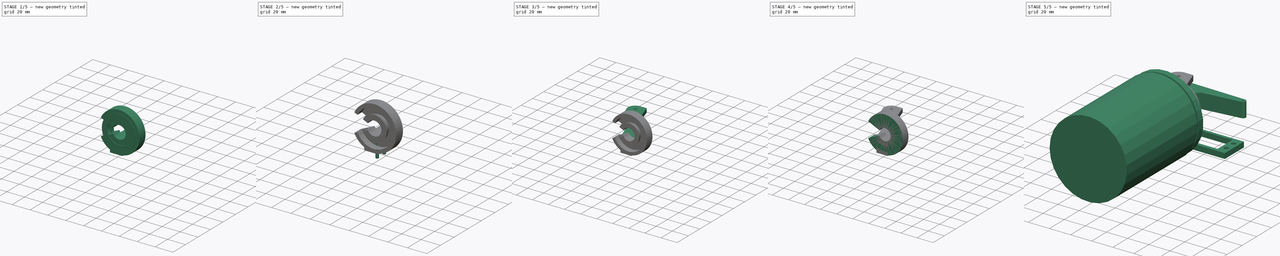
[diagram: build sequence overview — one tinted view per stage of 5, left to right]
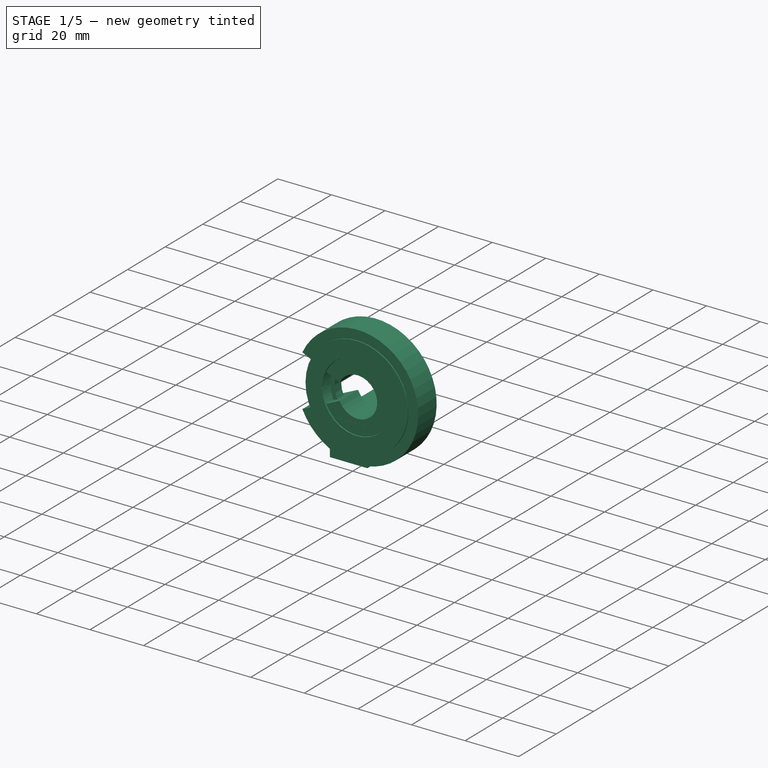
[diagram: stage 1 of 5 — iso view after this stage's code; geometry added in this stage tinted green]
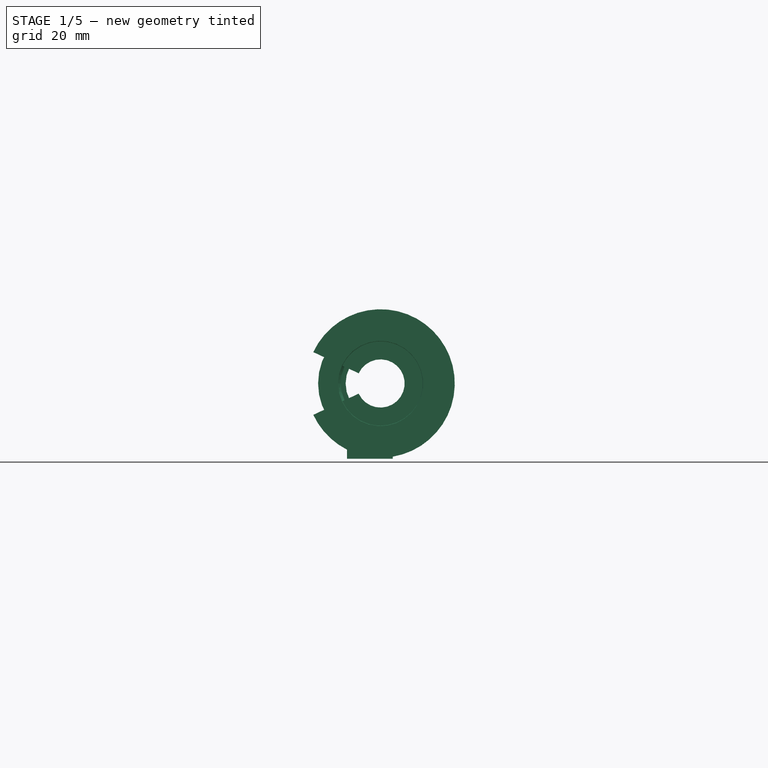
[diagram: stage 1 of 5 — front view after this stage's code; geometry added in this stage tinted green]
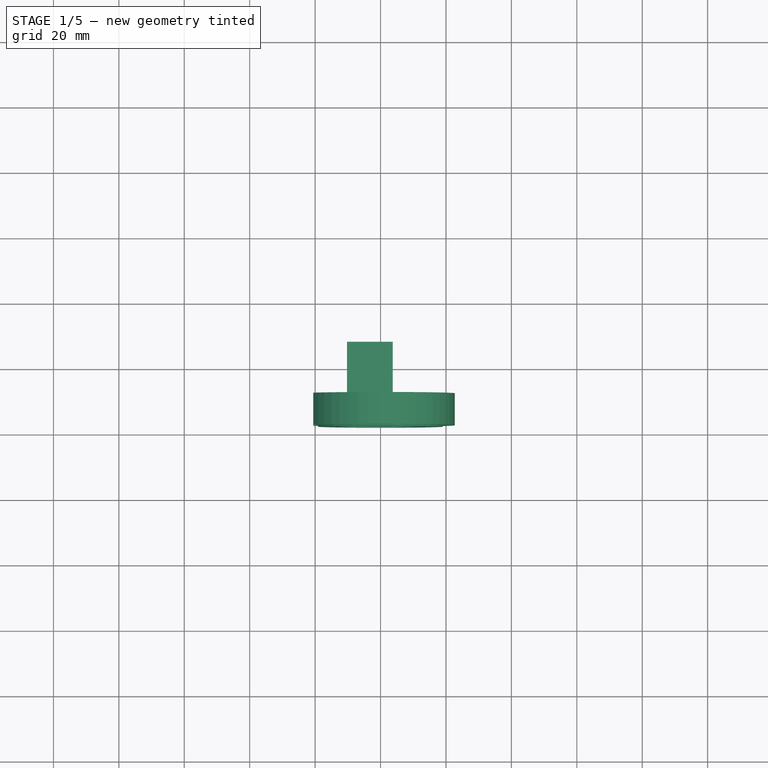
[diagram: stage 1 of 5 — top view after this stage's code; geometry added in this stage tinted green]
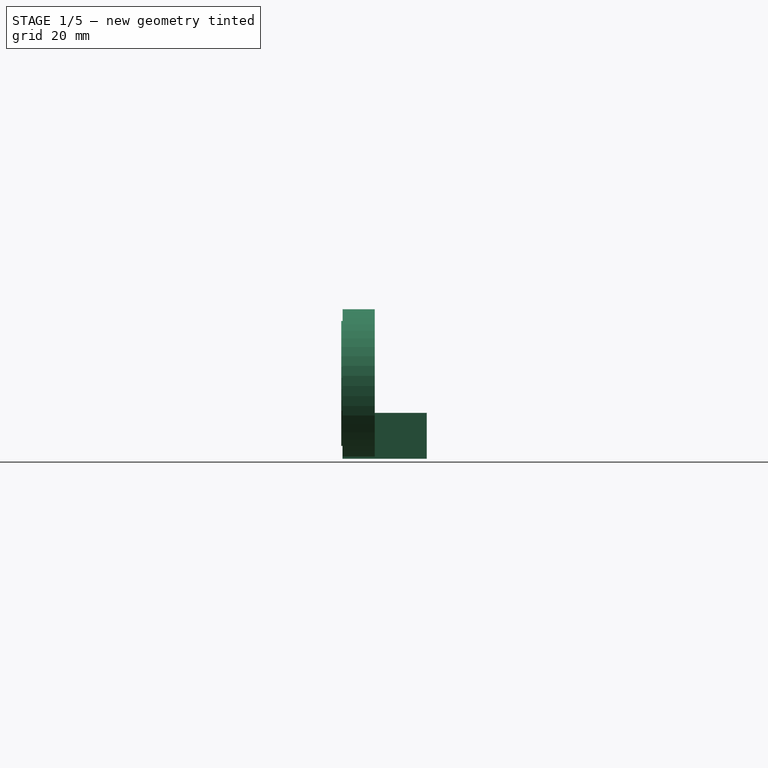
[diagram: stage 1 of 5 — right view after this stage's code; geometry added in this stage tinted green]
FCSTD DOCUMENT
Label: backup
objects: Sketcher::SketchObject×6, PartDesign::Pad×4, PartDesign::Revolution×4, Part::MultiFuse×3, Part::Cylinder×2, Part::Fuse×2, Part::Cut×2, Part::Box×1
note: 28 computed .brp shape members not serialized (recipe doc carries the construction recipe); baked Part::Feature solids carry a one-line shape summary decoded from their .brp

FEATURE [Part::Box] Box
  Height = 14
  Length = 14
  Placement = pos=(-10.25,-77.5,-23) rot=(0,0,1;0rad)
  Width = 25.75
FEATURE [Sketcher::SketchObject] Sketch007  label="cutout"
  sketch-geometry (6):
    g0: LineSegment StartX=-10.6785 StartY=-74.4568 StartZ=0 EndX=-12.1785 EndY=-74.4568 EndZ=0
    g1: LineSegment StartX=-12.1785 StartY=-74.4568 StartZ=0 EndX=-13 EndY=-77.8591 EndZ=0
    g2: LineSegment StartX=-19.0996 StartY=-77.8591 StartZ=0 EndX=-19.0996 EndY=-70.9592 EndZ=0
    g3: LineSegment StartX=-19.0996 StartY=-70.9592 StartZ=0 EndX=-10.6785 EndY=-70.9592 EndZ=0
    g4: LineSegment StartX=-10.6785 StartY=-70.9592 StartZ=0 EndX=-10.6785 EndY=-74.4568 EndZ=0
    g5: LineSegment StartX=-19.0996 StartY=-77.8591 StartZ=0 EndX=-13 EndY=-77.8591 EndZ=0
  constraints (14):
    c: Coincident(g0,g1)
    c: Coincident(g2,g3)
    c: Coincident(g3,g4)
    c: Coincident(g0,g4)
    c: DistanceX(g1) = -13
    c: Distance(g0) = 1.5
    c: Distance(g1) = 3.5
    c: Horizontal(g0)
    c: Horizontal(g3)
    c: Coincident(g5,g2)
    c: Horizontal(g5)
    c: Coincident(g5,g1)
    c: Vertical(g4)
    c: Vertical(g2)
FEATURE [PartDesign::Revolution] Revolution001  label="CutRevolve"
  Angle = 360
  Axis = (0,1,0)
  Base = (0,0,0)
  Sketch = -> Sketch007
FEATURE [PartDesign::Revolution] Revolution002  label="ClipBase"
  Angle = 310
  Axis = (0,1,0)
  Base = (0,0,0)
  Placement = pos=(0,0,0) rot=(0,1,0;0.436332rad)
  Sketch = -> Sketch002
FEATURE [Part::Fuse] Fusion001
  Base = -> Revolution002
  Tool = -> Box
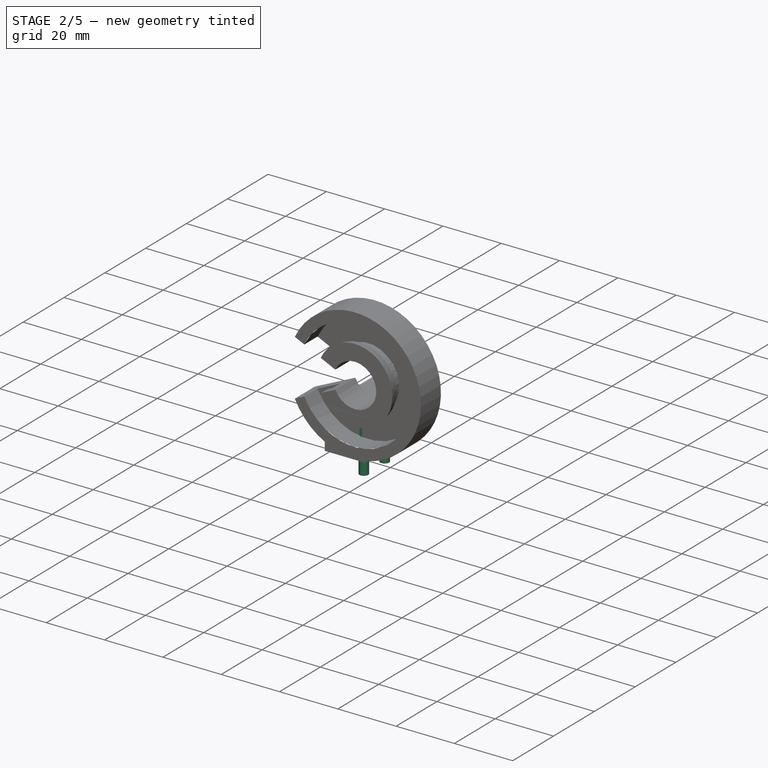
[diagram: stage 2 of 5 — iso view after this stage's code; geometry added in this stage tinted green]
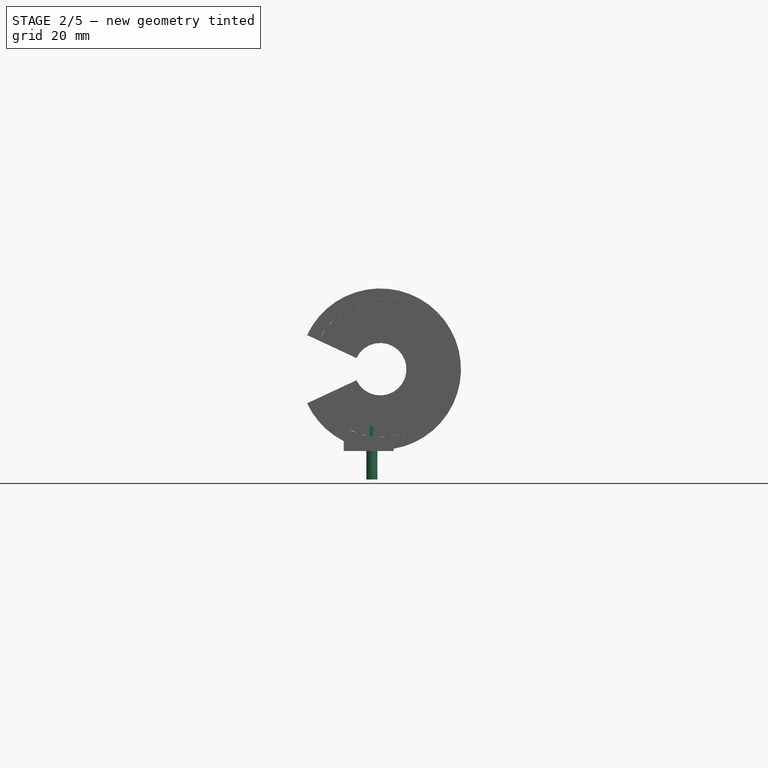
[diagram: stage 2 of 5 — front view after this stage's code; geometry added in this stage tinted green]
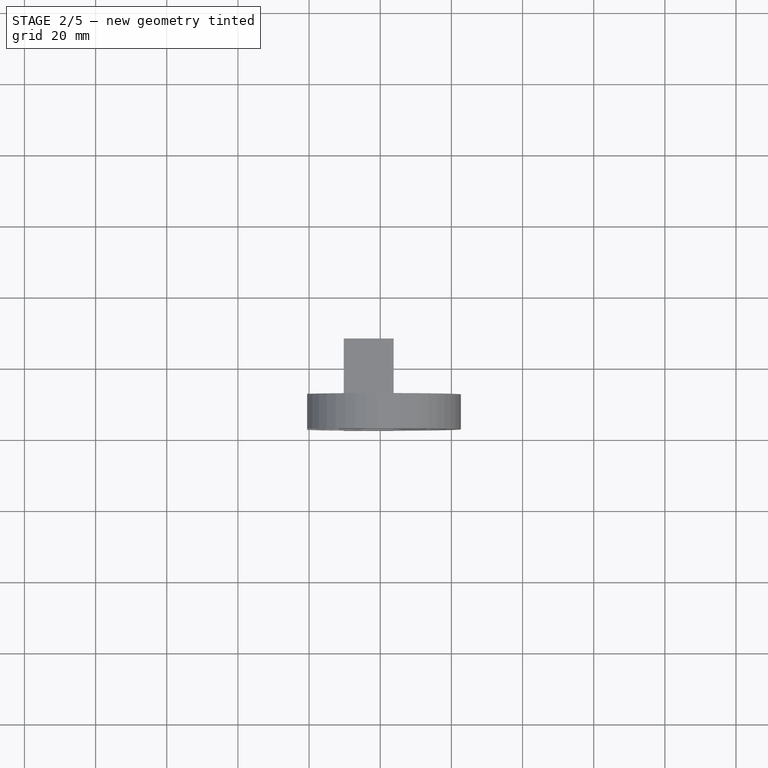
[diagram: stage 2 of 5 — top view after this stage's code; geometry added in this stage tinted green]
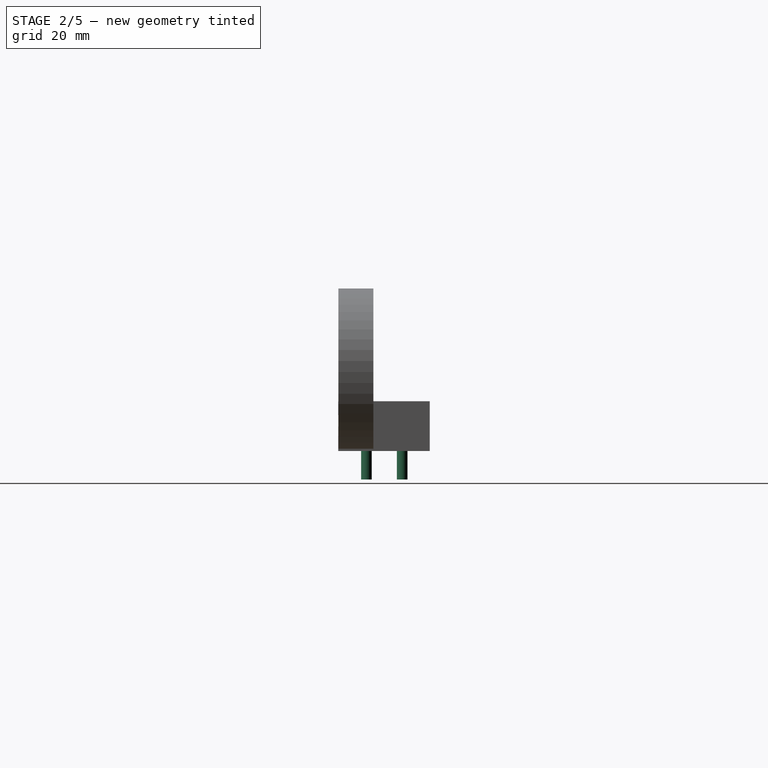
[diagram: stage 2 of 5 — right view after this stage's code; geometry added in this stage tinted green]
FEATURE [Part::Cylinder] Cylinder
  Angle = 360
  Height = 15
  Placement = pos=(-2.3,-59.5,-31) rot=(0,0,1;0rad)
  Radius = 1.5
FEATURE [Part::Cylinder] Cylinder001
  Angle = 360
  Height = 15
  Placement = pos=(-2.4,-69.55,-31) rot=(0,0,1;0rad)
  Radius = 1.5
FEATURE [Part::Cut] Cut
  Base = -> Fusion001
  Tool = -> Revolution001
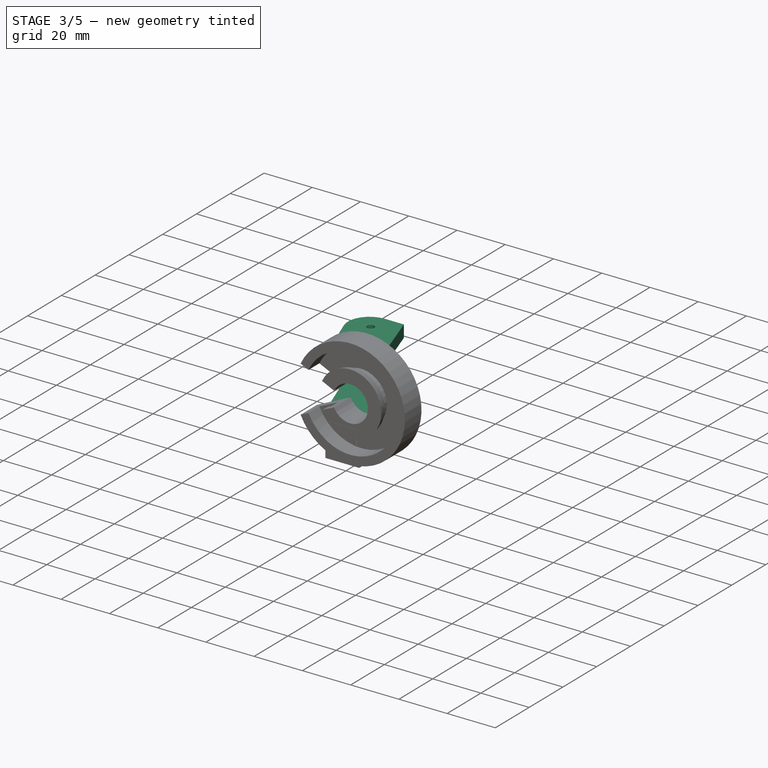
[diagram: stage 3 of 5 — iso view after this stage's code; geometry added in this stage tinted green]
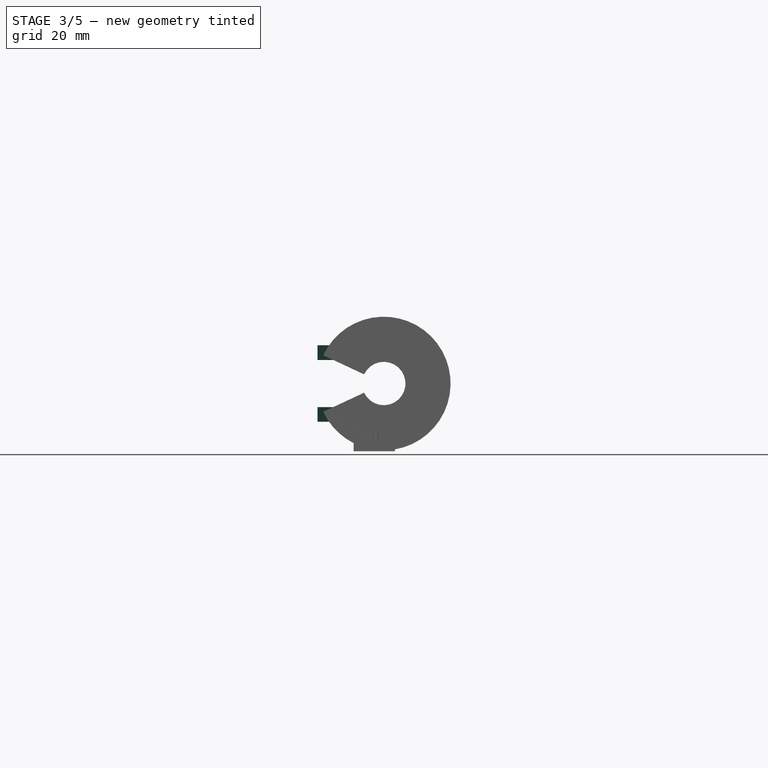
[diagram: stage 3 of 5 — front view after this stage's code; geometry added in this stage tinted green]
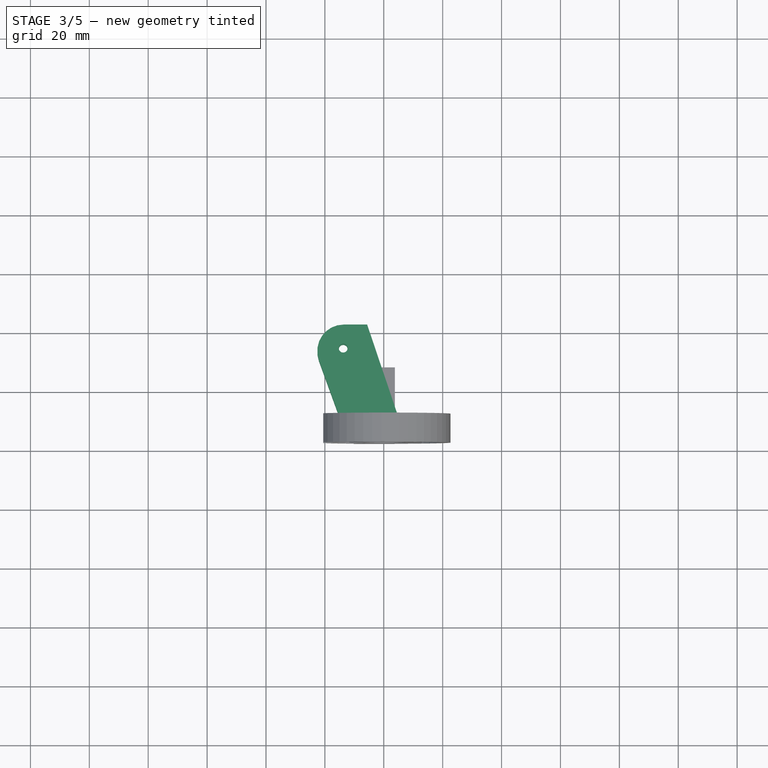
[diagram: stage 3 of 5 — top view after this stage's code; geometry added in this stage tinted green]
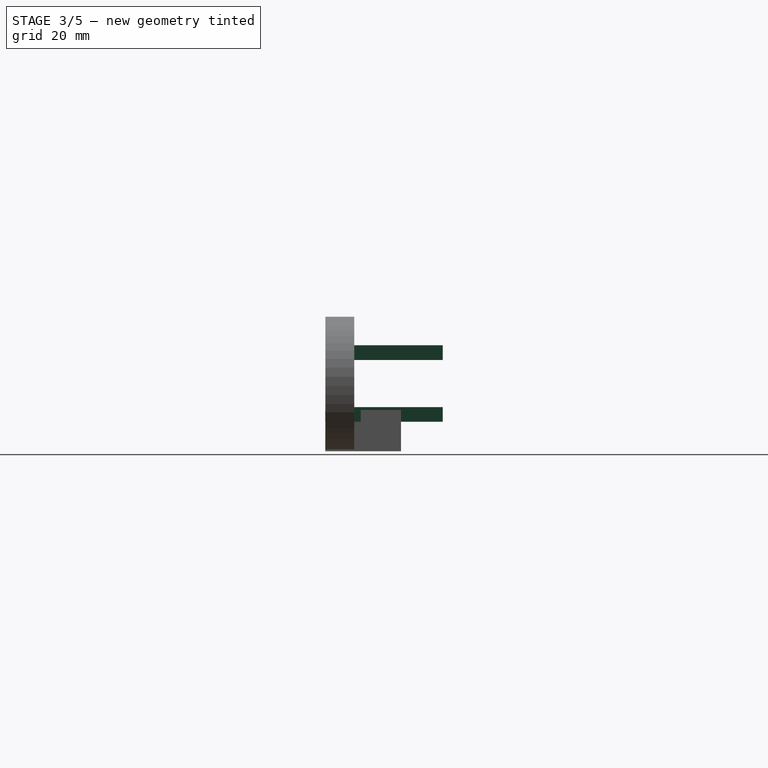
[diagram: stage 3 of 5 — right view after this stage's code; geometry added in this stage tinted green]
FEATURE [Sketcher::SketchObject] Sketch005
  sketch-geometry (7):
    g0: ArcOfCircle CenterX=0.120536 CenterY=-43.7845 CenterZ=0 NormalX=0 NormalY=0 NormalZ=1 Radius=11.5561 StartAngle=3.71777 EndAngle=5.7098
    g1: Circle CenterX=-13.7325 CenterY=-45.5594 CenterZ=0 NormalX=0 NormalY=0 NormalZ=1 Radius=1.5
    g2: Circle CenterX=45.3624 CenterY=-43.1808 CenterZ=0 NormalX=0 NormalY=0 NormalZ=1 Radius=1
    g3: LineSegment StartX=-13.6051 StartY=-39.4152 StartZ=0 EndX=45.4151 EndY=-40.6383 EndZ=0
    g4: LineSegment StartX=45.6687 StartY=-45.7054 StartZ=0 EndX=9.82841 EndY=-50.0535 EndZ=0
    g5: ArcOfCircle CenterX=-13.7325 CenterY=-45.5594 CenterZ=0 NormalX=0 NormalY=0 NormalZ=1 Radius=6.14557 StartAngle=1.55008 EndAngle=5.45653
    g6: ArcOfCircle CenterX=45.3624 CenterY=-43.1808 CenterZ=0 NormalX=0 NormalY=0 NormalZ=1 Radius=2.54307 StartAngle=4.83312 EndAngle=7.83326
  constraints (12):
    c: Coincident(g4,g0)
    c: Radius(g2) = 1
    c: Radius(g1) = 1.5
    c: Coincident(g3,g5)
    c: Coincident(g5,g0)
    c: Coincident(g4,g6)
    c: Tangent(g4,g6)
    c: Coincident(g6,g2)
    c: Coincident(g6,g3)
    c: Tangent(g3,g6)
    c: Coincident(g5,g1)
    c: Tangent(g5,g3)
FEATURE [Sketcher::SketchObject] Sketch006
  sketch-geometry (6):
    g0: Circle CenterX=-13.7888 CenterY=-45.579 CenterZ=0 NormalX=0 NormalY=0 NormalZ=1 Radius=1.5
    g1: ArcOfCircle CenterX=-13.6227 CenterY=-46.5271 CenterZ=0 NormalX=0 NormalY=0 NormalZ=1 Radius=8.95293 StartAngle=1.5708 EndAngle=3.49058
    g2: LineSegment StartX=-22.0359 StartY=-49.5886 StartZ=0 EndX=-15.4242 EndY=-67.7585 EndZ=0
    g3: LineSegment StartX=-15.4242 StartY=-67.7585 StartZ=0 EndX=4.54183 EndY=-67.7585 EndZ=0
    g4: LineSegment StartX=4.54183 StartY=-67.7585 StartZ=0 EndX=-5.6479 EndY=-37.5742 EndZ=0
    g5: LineSegment StartX=-5.6479 StartY=-37.5742 StartZ=0 EndX=-13.6227 EndY=-37.5742 EndZ=0
  constraints (10):
    c: Coincident(g2,g3)
    c: Horizontal(g3)
    c: Coincident(g4,g5)
    c: Coincident(g5,g1)
    c: Horizontal(g5)
    c: Tangent(g2,g1)
    c: Coincident(g1,g2)
    c: Tangent(g5,g1)
    c: Radius(g0) = 1.5
    c: Coincident(g4,g3)
FEATURE [PartDesign::Pad] Pad004  label="Leg1"
  Length = 5
  MirroredExtent = false
  Placement = pos=(0,0,8) rot=(0,0,1;0rad)
  Sketch = -> Sketch006
FEATURE [PartDesign::Pad] Pad005  label="Leg2"
  Length = 5
  MirroredExtent = false
  Placement = pos=(0,0,-13) rot=(0,0,1;0rad)
  Sketch = -> Sketch006
FEATURE [Part::MultiFuse] Fusion002
  Shapes = -> [Cylinder001,Cylinder]
FEATURE [Part::Cut] Cut001
  Base = -> Cut
  Tool = -> Fusion002
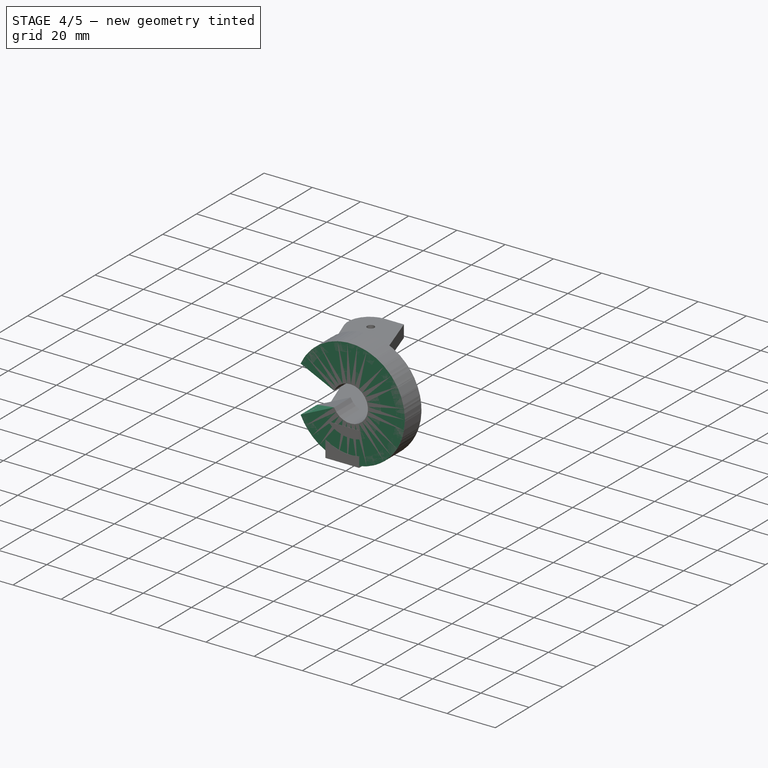
[diagram: stage 4 of 5 — iso view after this stage's code; geometry added in this stage tinted green]
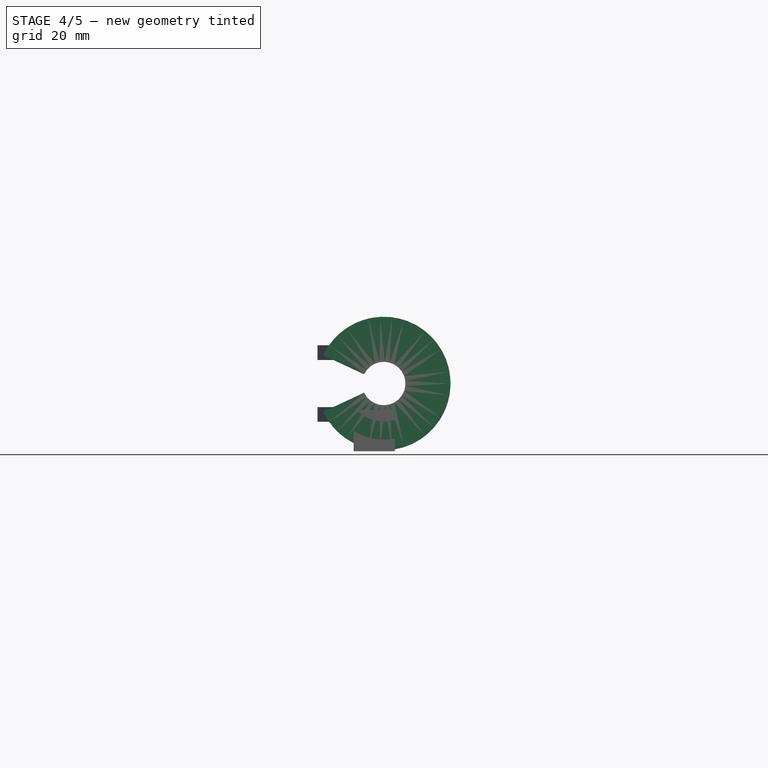
[diagram: stage 4 of 5 — front view after this stage's code; geometry added in this stage tinted green]
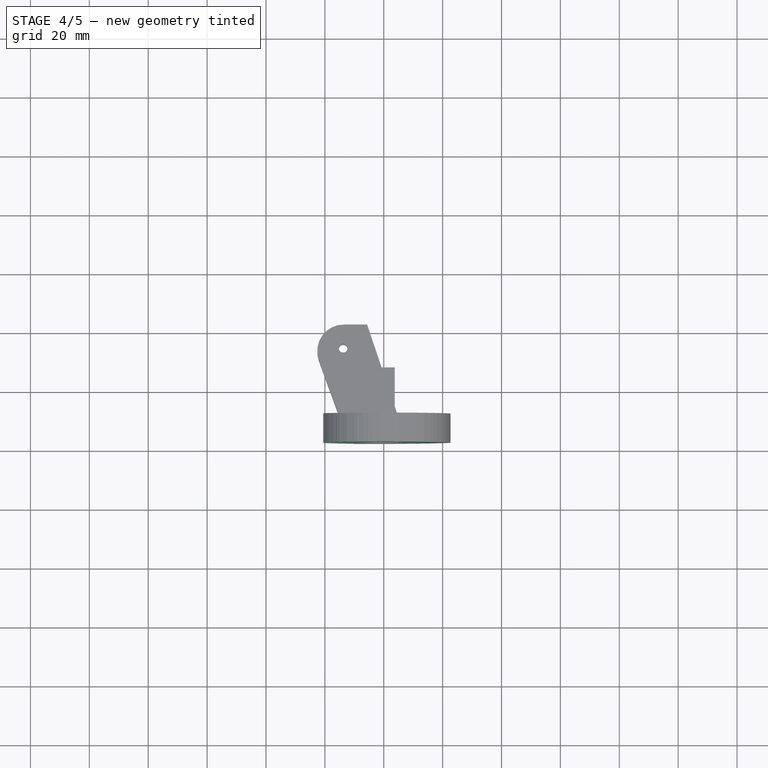
[diagram: stage 4 of 5 — top view after this stage's code; geometry added in this stage tinted green]
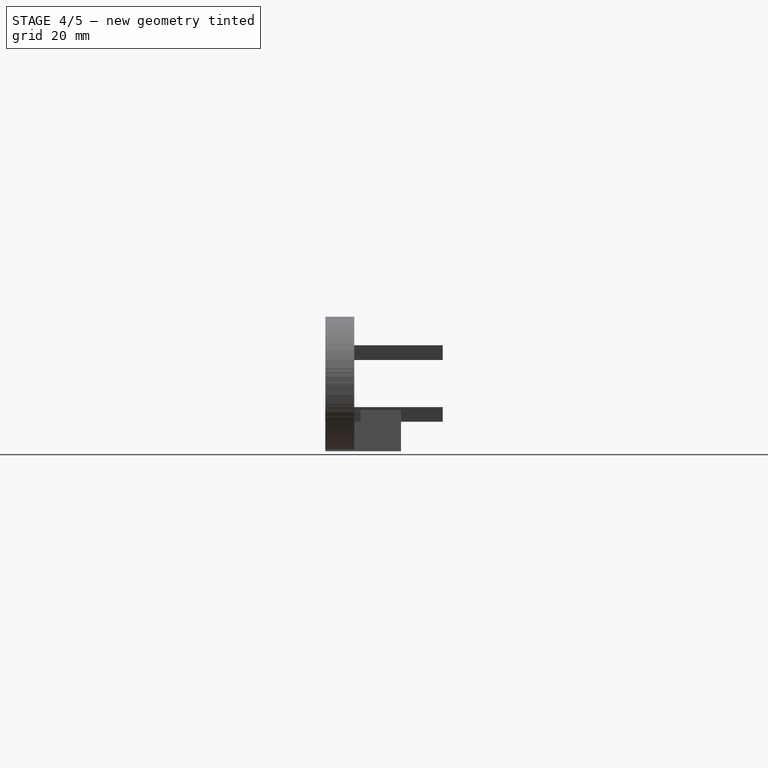
[diagram: stage 4 of 5 — right view after this stage's code; geometry added in this stage tinted green]
FEATURE [Part::Fuse] Fusion
  Base = -> Pad004
  Tool = -> Pad005
FEATURE [PartDesign::Revolution] Revolution003  label="ClipBase001"
  Angle = 310
  Axis = (0,1,0)
  Base = (0,0,0)
  Placement = pos=(0,0,0) rot=(0,1,0;0.436332rad)
  Sketch = -> Sketch002
FEATURE [Part::MultiFuse] Fusion004
  Shapes = -> [Fusion,Cut001]
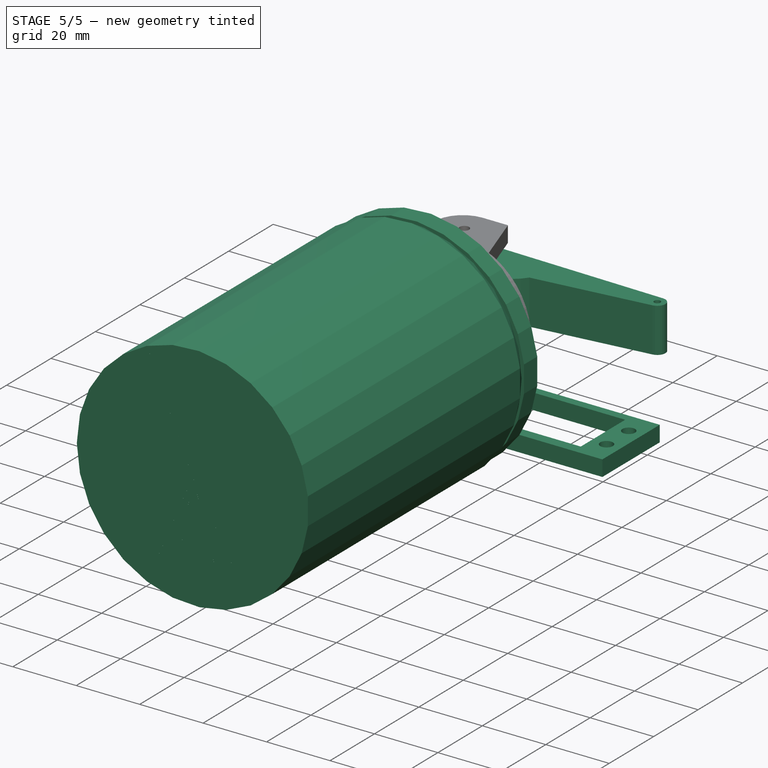
[diagram: stage 5 of 5 — iso view after this stage's code; geometry added in this stage tinted green]
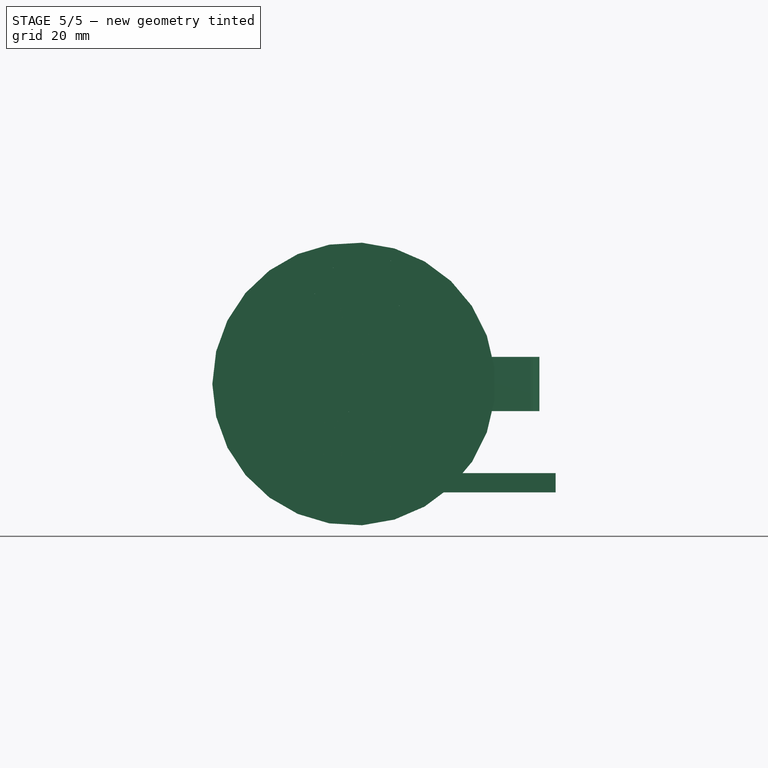
[diagram: stage 5 of 5 — front view after this stage's code; geometry added in this stage tinted green]
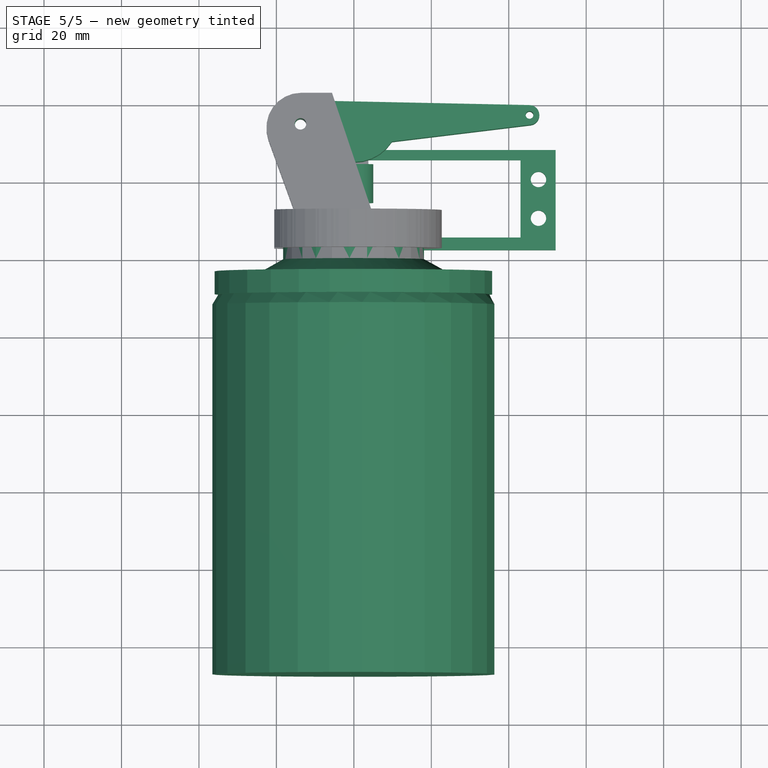
[diagram: stage 5 of 5 — top view after this stage's code; geometry added in this stage tinted green]
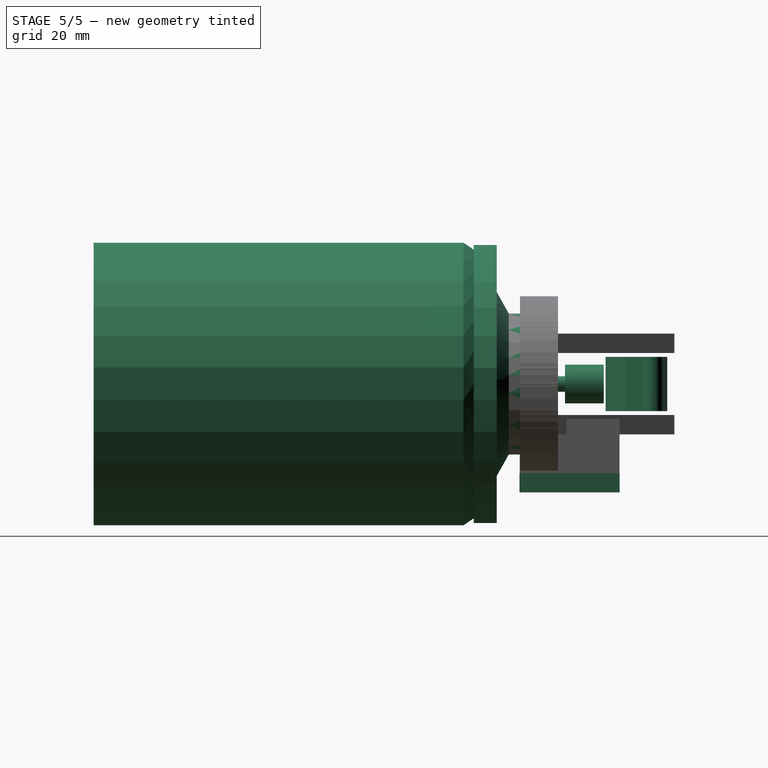
[diagram: stage 5 of 5 — right view after this stage's code; geometry added in this stage tinted green]
FEATURE [Sketcher::SketchObject] Sketch
  sketch-geometry (20):
    g0: LineSegment StartX=0.00389886 StartY=-55.811 StartZ=0 EndX=-4.9961 EndY=-55.811 EndZ=0
    g1: LineSegment StartX=-4.9961 StartY=-55.811 StartZ=0 EndX=-4.9961 EndY=-65.8236 EndZ=0
    g2: LineSegment StartX=-4.9961 StartY=-65.8236 StartZ=0 EndX=-1.9961 EndY=-65.8236 EndZ=0
    g3: LineSegment StartX=-1.9961 StartY=-65.8236 StartZ=0 EndX=-1.9961 EndY=-77.8236 EndZ=0
    g4: LineSegment StartX=-1.9961 StartY=-77.8236 StartZ=0 EndX=-15.9961 EndY=-77.8236 EndZ=0
    g5: LineSegment StartX=-15.9961 StartY=-77.8236 StartZ=0 EndX=-15.9961 EndY=-74.7236 EndZ=0
    g6: LineSegment StartX=-15.9961 StartY=-74.7236 StartZ=0 EndX=-13.9961 EndY=-74.7236 EndZ=0
    g7: LineSegment StartX=-13.9961 StartY=-74.7236 StartZ=0 EndX=-13.9961 EndY=-71.6236 EndZ=0
    g8: LineSegment StartX=-13.9961 StartY=-71.6236 StartZ=0 EndX=-18.2461 EndY=-71.6236 EndZ=0
    g9: LineSegment StartX=-18.2461 StartY=-71.6236 StartZ=0 EndX=-18.2461 EndY=-80.3468 EndZ=0
    g10: LineSegment StartX=-18.2461 StartY=-80.3468 StartZ=0 EndX=-32.2008 EndY=-88.1907 EndZ=0
    g11: LineSegment StartX=-32.2008 StartY=-88.1907 StartZ=0 EndX=-34.2008 EndY=-88.1907 EndZ=0
    g12: LineSegment StartX=-34.2008 StartY=-88.1907 StartZ=0 EndX=-34.2008 EndY=-83.4407 EndZ=0
    g13: LineSegment StartX=-34.2008 StartY=-83.4407 StartZ=0 EndX=-35.9508 EndY=-83.4407 EndZ=0
    g14: LineSegment StartX=-35.9508 StartY=-83.4407 StartZ=0 EndX=-35.9508 EndY=-89.3956 EndZ=0
    g15: LineSegment StartX=-35.9508 StartY=-89.3956 StartZ=0 EndX=-34.9508 EndY=-89.3956 EndZ=0
    g16: LineSegment StartX=-34.9508 StartY=-89.3956 StartZ=0 EndX=-36.541 EndY=-92.0268 EndZ=0
    g17: LineSegment StartX=-36.541 StartY=-92.0268 StartZ=0 EndX=-36.541 EndY=-187.541 EndZ=0
    g18: LineSegment StartX=-36.541 StartY=-187.541 StartZ=0 EndX=0.00389886 EndY=-187.541 EndZ=0
    g19: LineSegment StartX=0.00389886 StartY=-187.541 StartZ=0 EndX=0.00389886 EndY=-55.811 EndZ=0
  constraints (54):
    c: Coincident(g0,g1)
    c: Vertical(g1)
    c: Coincident(g1,g2)
    c: Horizontal(g2)
    c: Coincident(g2,g3)
    c: Vertical(g3)
    c: Coincident(g3,g4)
    c: Horizontal(g4)
    c: Coincident(g4,g5)
    c: Coincident(g5,g6)
    c: Horizontal(g6)
    c: Coincident(g6,g7)
    c: Vertical(g7)
    c: Coincident(g7,g8)
    c: Horizontal(g8)
    c: Coincident(g8,g9)
    c: Vertical(g9)
    c: Coincident(g9,g10)
    c: Coincident(g10,g11)
    c: Coincident(g11,g12)
    c: Coincident(g12,g13)
    c: Coincident(g13,g14)
    c: Vertical(g14)
    c: Coincident(g14,g15)
    c: Coincident(g15,g16)
    c: Coincident(g16,g17)
    c: Vertical(g17)
    c: Coincident(g17,g18)
    c: Horizontal(g18)
    c: Coincident(g18,g19)
    c: Coincident(g19,g0)
    c: Vertical(g19)
    c: Horizontal(g0)
    c: Vertical(g12)
    c: Horizontal(g11)
    c: Horizontal(g15)
    c: Horizontal(g13)
    c: Distance(g2) = 3
    c: Distance(g1) = 10.0126
    c: Distance(g0) = 5
    c: Vertical(g5)
    c: Distance(g3) = 12
    c: Distance(g8) = 4.25
    c: Distance(g7) = 3.1
    c: Distance(g5) = 3.1
    c: Distance(g9) = 8.72314
    c: Distance(g6) = 2
    c: Distance(g11) = 2
    c: Distance(g13) = 1.75
    c: Distance(g12) = 4.75
    c: Distance(g18) = 36.5449
    c: Distance(g4) = 14
    c: Distance(g14) = 5.95489
    c: Distance(g15) = 1
FEATURE [Sketcher::SketchObject] Sketch002
  sketch-geometry (4):
    g0: LineSegment StartX=-7.37255 StartY=-77.4445 StartZ=0 EndX=-7.37255 EndY=-67.6266 EndZ=0
    g1: LineSegment StartX=-7.37255 StartY=-67.6266 StartZ=0 EndX=-22.6885 EndY=-67.6266 EndZ=0
    g2: LineSegment StartX=-22.6885 StartY=-67.6266 StartZ=0 EndX=-22.6885 EndY=-77.4445 EndZ=0
    g3: LineSegment StartX=-22.6885 StartY=-77.4445 StartZ=0 EndX=-7.37255 EndY=-77.4445 EndZ=0
  constraints (11):
    c: Coincident(g0,g1)
    c: Coincident(g1,g2)
    c: Coincident(g2,g3)
    c: Horizontal(g3)
    c: Vertical(g0)
    c: Vertical(g2)
    c: Horizontal(g1)
    c: DistanceX(g0) = -7.37255
    c: DistanceY(g0) = -77.4445
    c: Distance(g1) = 15.316
    c: Coincident(g3,g0)
FEATURE [Sketcher::SketchObject] Sketch004
  sketch-geometry (14):
    g0: Circle CenterX=10.673 CenterY=-80.6744 CenterZ=0 NormalX=0 NormalY=0 NormalZ=1 Radius=2
    g1: Circle CenterX=20.673 CenterY=-80.6744 CenterZ=0 NormalX=0 NormalY=0 NormalZ=1 Radius=2
    g2: Circle CenterX=10.673 CenterY=-130.674 CenterZ=0 NormalX=0 NormalY=0 NormalZ=1 Radius=2
    g3: Circle CenterX=20.673 CenterY=-130.674 CenterZ=0 NormalX=0 NormalY=0 NormalZ=1 Radius=2
    g4: LineSegment StartX=2.44713 StartY=-72.7598 StartZ=0 EndX=28.2757 EndY=-72.7598 EndZ=0
    g5: LineSegment StartX=28.2757 StartY=-72.7598 StartZ=0 EndX=28.2757 EndY=-135.115 EndZ=0
    g6: LineSegment StartX=28.2757 StartY=-135.115 StartZ=0 EndX=2.44713 EndY=-135.115 EndZ=0
    g7: LineSegment StartX=2.44713 StartY=-135.115 StartZ=0 EndX=2.44713 EndY=-72.7598 EndZ=0
    g8: LineSegment StartX=5.67298 StartY=-85.2994 StartZ=0 EndX=25.673 EndY=-85.2994 EndZ=0
    g9: LineSegment StartX=25.673 StartY=-85.2994 StartZ=0 EndX=25.673 EndY=-126.049 EndZ=0
    g10: LineSegment StartX=25.673 StartY=-126.049 StartZ=0 EndX=5.67298 EndY=-126.049 EndZ=0
    g11: LineSegment StartX=5.67298 StartY=-126.049 StartZ=0 EndX=5.67298 EndY=-85.2994 EndZ=0
    g12: LineSegment [constr] StartX=15.673 StartY=-101.841 StartZ=0 EndX=15.673 EndY=-105.674 EndZ=0
    g13: LineSegment [constr] StartX=15.673 StartY=-105.674 StartZ=0 EndX=19.5059 EndY=-105.674 EndZ=0
  constraints (27):
    c: Coincident(g4,g5)
    c: Coincident(g5,g6)
    c: Coincident(g6,g7)
    c: Coincident(g7,g4)
    c: Coincident(g8,g9)
    c: Coincident(g9,g10)
    c: Coincident(g10,g11)
    c: Coincident(g11,g8)
    c: Vertical(g12)
    c: Horizontal(g13)
    c: Symmetric(g1,g0,g12)
    c: Symmetric(g2,g3,g12)
    c: Symmetric(g3,g1,g13)
    c: Equal(g0,g1)
    c: Equal(g2,g1)
    c: Equal(g3,g1)
    c: Radius(g1) = 2
    c: Symmetric(g8,g10,g13)
    c: Symmetric(g8,g8,g12)
    c: Vertical(g9)
    c: Horizontal(g10)
    c: Coincident(g12,g13)
    c: Equal(g13,g12)
    c: DistanceY(g12,g1) = 25
    c: DistanceX(g12,g1) = 5
    c: Distance(g10) = 20
    c: Distance(g9) = 40.75
FEATURE [PartDesign::Pad] Pad003  label="ServoPlate"
  Length = 5
  MirroredExtent = false
  Placement = pos=(-83,-80,-28) rot=(0,0,1;1.5708rad)
  Sketch = -> Sketch004
FEATURE [PartDesign::Revolution] Revolution  label="Can"
  Angle = 360
  Axis = (0,1,0)
  Base = (0,0,0)
  Sketch = -> Sketch
FEATURE [PartDesign::Pad] Pad  label="Trigger"
  Length = 14
  MirroredExtent = false
  Placement = pos=(0,0,-7) rot=(0,0,1;0rad)
  Sketch = -> Sketch005
FEATURE [Part::MultiFuse] Fusion003
  Shapes = -> [Fusion,Fusion001]
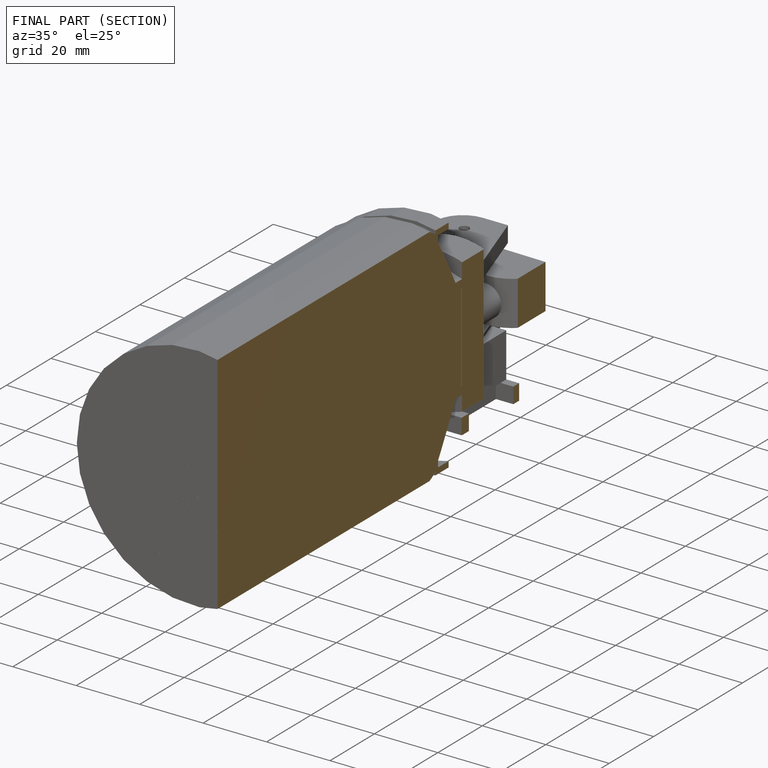
[diagram: finished part — half-section view (interior)]
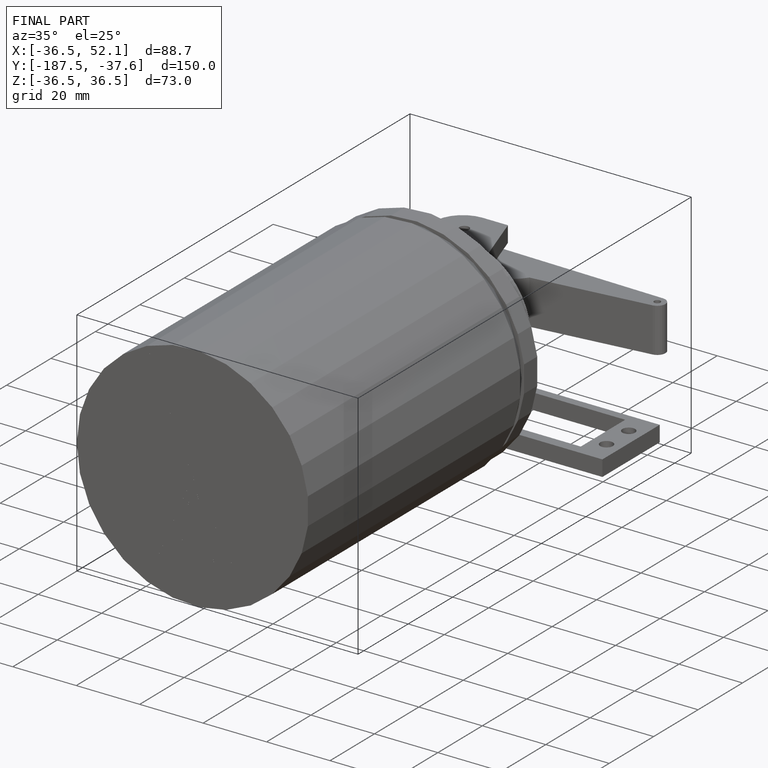
[diagram: finished part — iso view with bounding-box wireframe]
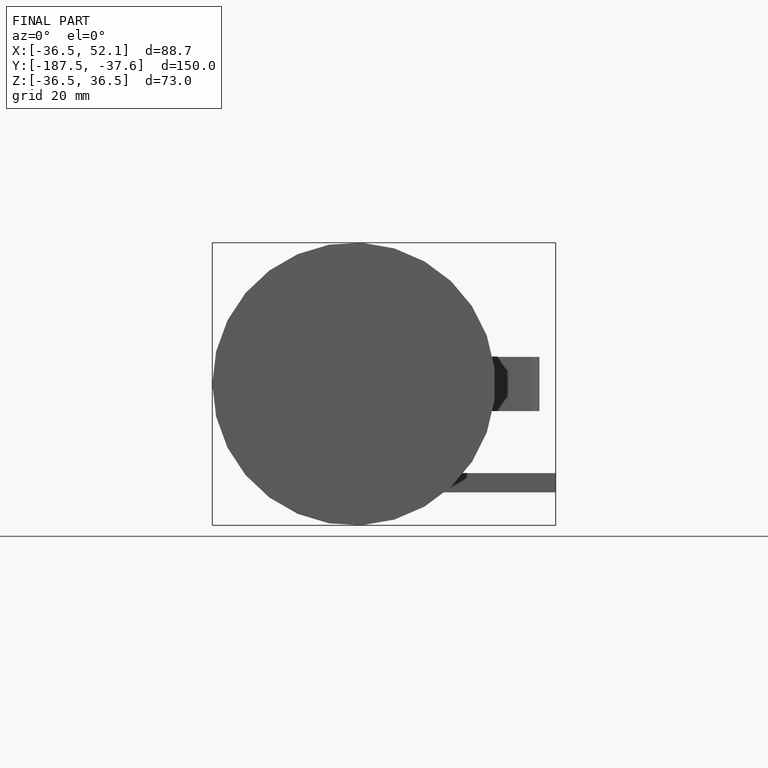
[diagram: finished part — front view with bounding-box wireframe]
